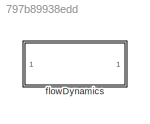
MODEL slx_797b89938edd
KIND library
CONFIG AbsTol = auto
CONFIG EnableMultiTasking = off
CONFIG FixedStep = auto
CONFIG MaxStep = auto
CONFIG MinStep = auto
CONFIG RelTol = 1e-3
CONFIG SampleTimeConstraint = Unconstrained
CONFIG Solver = VariableStepAuto
CONFIG SolverName = VariableStepAuto
CONFIG StartTime = 0.0
CONFIG StopTime = 10.0
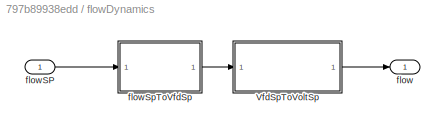
BLOCK [SubSystem] flowDynamics
  Ports = [1, 1]
  RequestExecContextInheritance = off
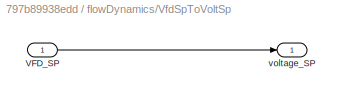
BLOCK [SubSystem] flowDynamics/VfdSpToVoltSp
  Ports = [1, 1]
  RequestExecContextInheritance = off
BLOCK [Inport] flowDynamics/VfdSpToVoltSp/VFD_SP
BLOCK [Outport] flowDynamics/VfdSpToVoltSp/voltage_SP
BLOCK [Outport] flowDynamics/flow
BLOCK [Inport] flowDynamics/flowSP
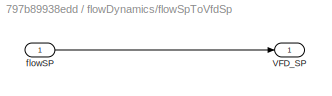
BLOCK [SubSystem] flowDynamics/flowSpToVfdSp
  Ports = [1, 1]
  RequestExecContextInheritance = off
BLOCK [Outport] flowDynamics/flowSpToVfdSp/VFD_SP
BLOCK [Inport] flowDynamics/flowSpToVfdSp/flowSP
LINE flowDynamics/VfdSpToVoltSp/VFD_SP:1 -> flowDynamics/VfdSpToVoltSp/voltage_SP:1
LINE flowDynamics/VfdSpToVoltSp:1 -> flowDynamics/flow:1
LINE flowDynamics/flowSP:1 -> flowDynamics/flowSpToVfdSp:1
LINE flowDynamics/flowSpToVfdSp/flowSP:1 -> flowDynamics/flowSpToVfdSp/VFD_SP:1
LINE flowDynamics/flowSpToVfdSp:1 -> flowDynamics/VfdSpToVoltSp:1
